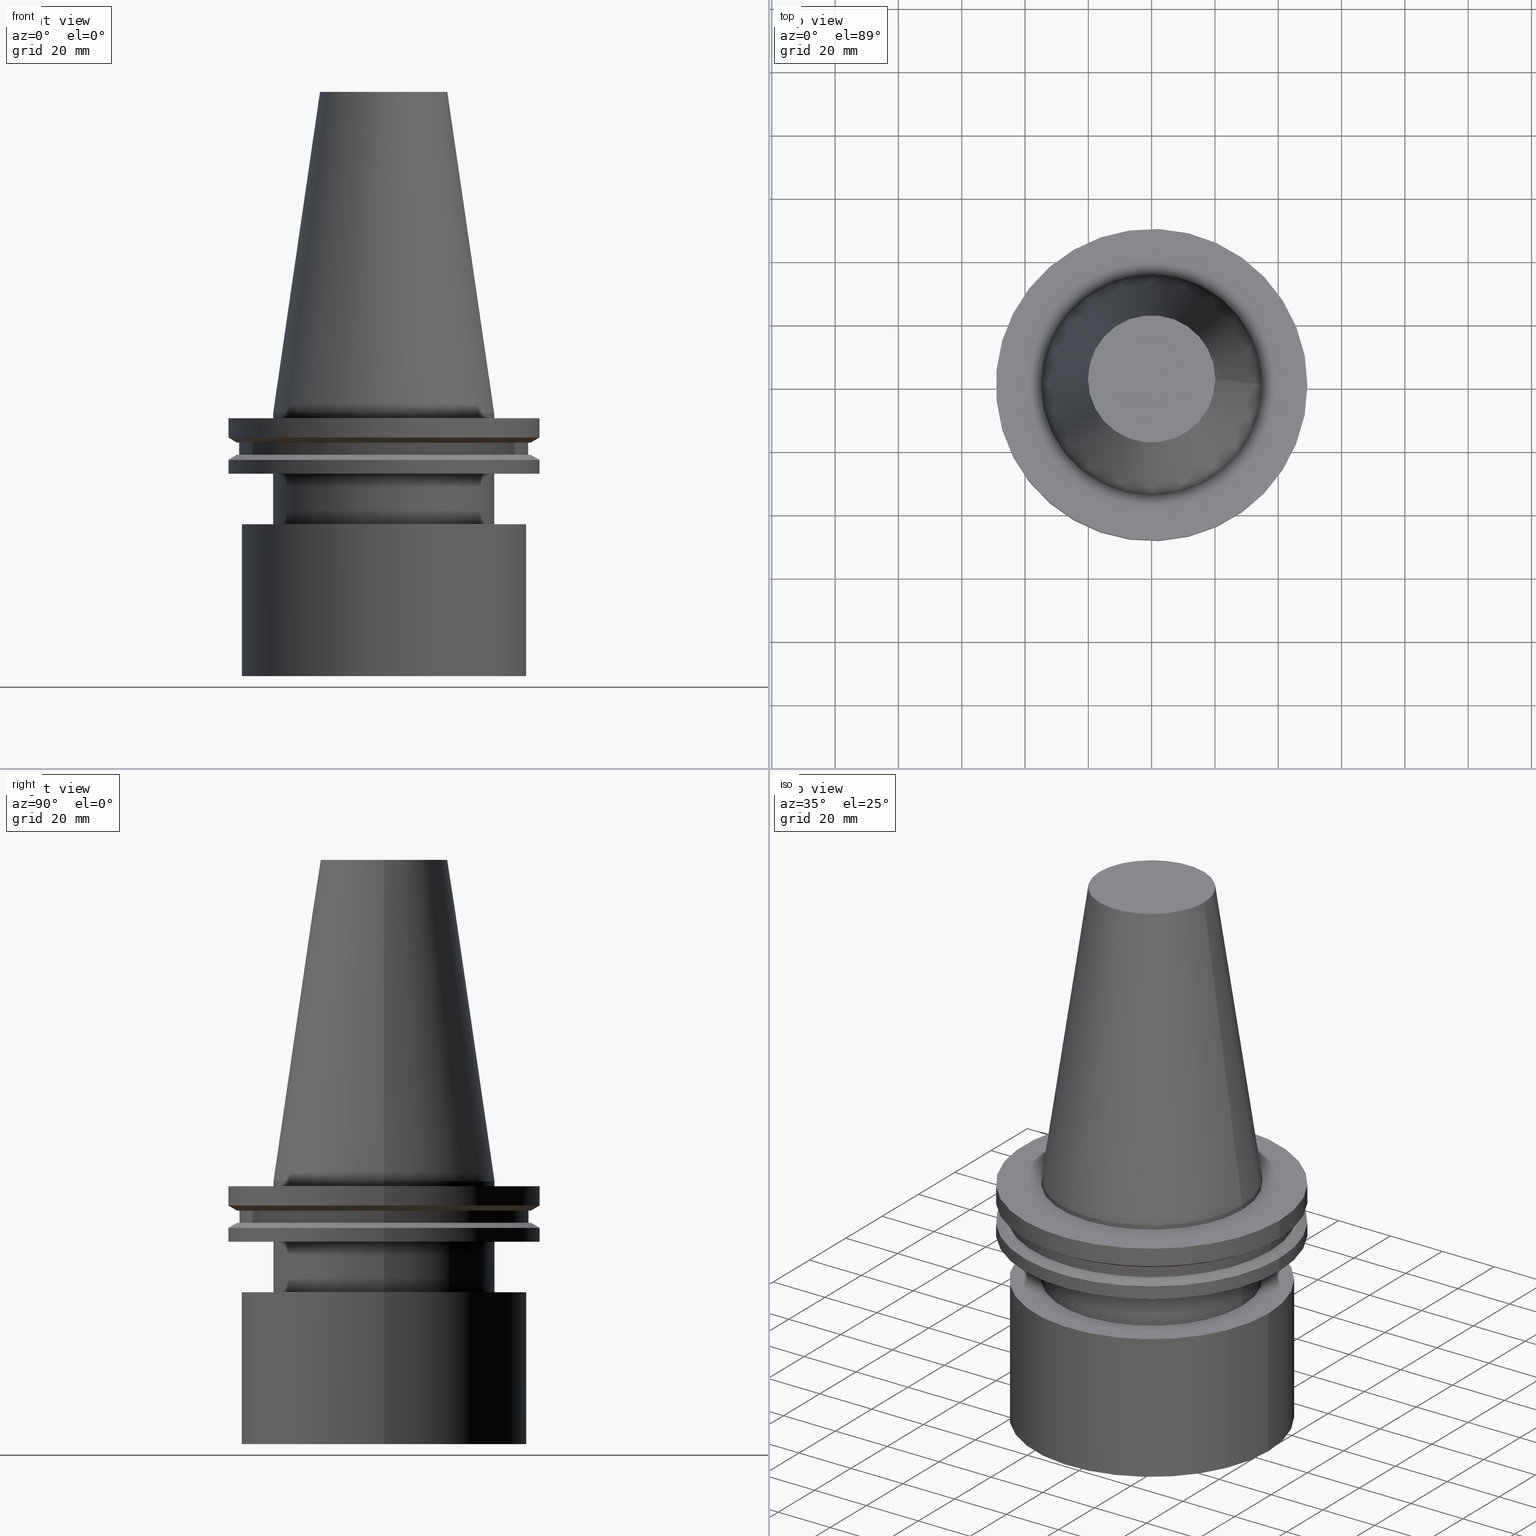
[diagram: canonical four-view strip — front | top / right | iso, engineering-drawing reading convention]
A machine part, canonical four-view strip (front | top / right | iso — engineering-drawing reading convention). The complete STEP part file that produces these views, byte-faithful:
ISO-10303-21;
HEADER;
FILE_DESCRIPTION (( 'STEP AP203' ),
    '1' );
FILE_NAME ('11.326.674.stp',
    '2022-03-09T14:59:57',
    ( '' ),
    ( '' ),
    'SwSTEP 2.0',
    'SolidWorks 2021',
    '' );
FILE_SCHEMA (( 'CONFIG_CONTROL_DESIGN' ));
ENDSEC;

DATA;
#1 = CARTESIAN_POINT ( 'NONE',  ( 34.92499999999999716, 0.000000000000000000, -19.04999999999999716 ) ) ;
#2 = ORIENTED_EDGE ( 'NONE', *, *, #118, .F. ) ;
#3 = VERTEX_POINT ( 'NONE', #72 ) ;
#4 = ADVANCED_FACE ( 'NONE', ( #145, #353 ), #290, .T. ) ;
#5 = ORIENTED_EDGE ( 'NONE', *, *, #107, .T. ) ;
#6 = DIRECTION ( 'NONE',  ( 0.000000000000000000, 0.000000000000000000, 1.000000000000000000 ) ) ;
#7 = ORIENTED_EDGE ( 'NONE', *, *, #69, .T. ) ;
#8 = CARTESIAN_POINT ( 'NONE',  ( 34.92499999999999716, 0.000000000000000000, -35.00000000000000000 ) ) ;
#9 = ORIENTED_EDGE ( 'NONE', *, *, #23, .T. ) ;
#10 = PERSON_AND_ORGANIZATION_ROLE ( 'creator' ) ;
#11 = CIRCLE ( 'NONE', #64, 45.00000000000000000 ) ;
#12 = APPROVAL_PERSON_ORGANIZATION ( #199, #171, #166 ) ;
#13 = CARTESIAN_POINT ( 'NONE',  ( 0.000000000000000000, 20.10819343178871321, 101.5999999999999943 ) ) ;
#14 = CARTESIAN_POINT ( 'NONE',  ( 45.64500000000000313, 0.000000000000000000, -13.05499999999999794 ) ) ;
#15 = CC_DESIGN_PERSON_AND_ORGANIZATION_ASSIGNMENT ( #75, #10, ( #367 ) ) ;
#16 = DIRECTION ( 'NONE',  ( 1.000000000000000000, 0.000000000000000000, 0.000000000000000000 ) ) ;
#17 = APPROVAL_ROLE ( '' ) ;
#18 = DIRECTION ( 'NONE',  ( -1.000000000000000000, 0.000000000000000000, -0.000000000000000000 ) ) ;
#19 = DATE_AND_TIME ( #173, #79 ) ;
#20 = AXIS2_PLACEMENT_3D ( 'NONE', #110, #267, #212 ) ;
#21 = PRODUCT_DEFINITION_FORMATION_WITH_SPECIFIED_SOURCE ( 'ANY', '', #305, .NOT_KNOWN. ) ;
#22 = PLANE ( 'NONE',  #168 ) ;
#23 = EDGE_CURVE ( 'NONE', #279, #279, #390, .T. ) ;
#24 = CARTESIAN_POINT ( 'NONE',  ( 0.000000000000000000, 0.000000000000000000, -13.05499999999999794 ) ) ;
#25 = PERSON_AND_ORGANIZATION ( #112, #370 ) ;
#26 = FACE_BOUND ( 'NONE', #181, .T. ) ;
#27 = CALENDAR_DATE ( 2022, 9, 3 ) ;
#28 = EDGE_CURVE ( 'NONE', #225, #225, #177, .T. ) ;
#29 = AXIS2_PLACEMENT_3D ( 'NONE', #13, #270, #18 ) ;
#30 = CC_DESIGN_APPROVAL ( #171, ( #367 ) ) ;
#31 = CARTESIAN_POINT ( 'NONE',  ( 0.000000000000000000, 0.000000000000000000, 101.5999999999999943 ) ) ;
#32 = DIRECTION ( 'NONE',  ( 0.000000000000000000, -0.000000000000000000, 1.000000000000000000 ) ) ;
#33 = CARTESIAN_POINT ( 'NONE',  ( 0.000000000000000000, 0.000000000000000000, -9.204999999999991189 ) ) ;
#34 = AXIS2_PLACEMENT_3D ( 'NONE', #300, #389, #119 ) ;
#35 = EDGE_CURVE ( 'NONE', #252, #252, #54, .T. ) ;
#36 = CARTESIAN_POINT ( 'NONE',  ( 0.000000000000000000, 0.000000000000000000, 101.5999999999999943 ) ) ;
#37 = DIRECTION ( 'NONE',  ( 1.000000000000000000, 0.000000000000000000, 0.000000000000000000 ) ) ;
#38 = EDGE_LOOP ( 'NONE', ( #311 ) ) ;
#39 = EDGE_CURVE ( 'NONE', #227, #227, #78, .T. ) ;
#40 = ORIENTED_EDGE ( 'NONE', *, *, #211, .F. ) ;
#41 = AXIS2_PLACEMENT_3D ( 'NONE', #144, #149, #50 ) ;
#42 = EDGE_LOOP ( 'NONE', ( #99 ) ) ;
#43 = VERTEX_POINT ( 'NONE', #377 ) ;
#44 = APPROVAL_STATUS ( 'not_yet_approved' ) ;
#45 = EDGE_LOOP ( 'NONE', ( #40 ) ) ;
#46 = CALENDAR_DATE ( 2022, 9, 3 ) ;
#47 = AXIS2_PLACEMENT_3D ( 'NONE', #189, #157, #182 ) ;
#48 = ORIENTED_EDGE ( 'NONE', *, *, #93, .T. ) ;
#49 = SECURITY_CLASSIFICATION_LEVEL ( 'unclassified' ) ;
#50 = DIRECTION ( 'NONE',  ( 1.000000000000000000, 0.000000000000000000, 0.000000000000000000 ) ) ;
#51 = CYLINDRICAL_SURFACE ( 'NONE', #327, 49.21499999999999631 ) ;
#52 = ADVANCED_FACE ( 'NONE', ( #350, #321 ), #58, .T. ) ;
#53 = FACE_OUTER_BOUND ( 'NONE', #262, .T. ) ;
#54 = CIRCLE ( 'NONE', #41, 49.21500000000000341 ) ;
#55 = DIRECTION ( 'NONE',  ( -1.000000000000000000, 0.000000000000000000, -0.000000000000000000 ) ) ;
#56 = PERSON_AND_ORGANIZATION_ROLE ( 'creator' ) ;
#57 = CARTESIAN_POINT ( 'NONE',  ( 0.000000000000000000, 0.000000000000000000, -35.00000000000000000 ) ) ;
#58 = CYLINDRICAL_SURFACE ( 'NONE', #130, 34.92499999999999716 ) ;
#59 = CIRCLE ( 'NONE', #147, 34.92499999999999716 ) ;
#60 = CARTESIAN_POINT ( 'NONE',  ( 0.000000000000000000, 0.000000000000000000, 0.000000000000000000 ) ) ;
#61 = DIRECTION ( 'NONE',  ( 1.000000000000000000, 0.000000000000000000, 0.000000000000000000 ) ) ;
#62 = DIRECTION ( 'NONE',  ( -0.000000000000000000, -0.000000000000000000, 1.000000000000000000 ) ) ;
#63 = PRODUCT_DEFINITION_SHAPE ( 'NONE', 'NONE',  #367 ) ;
#64 = AXIS2_PLACEMENT_3D ( 'NONE', #308, #334, #126 ) ;
#65 = CC_DESIGN_APPROVAL ( #197, ( #132 ) ) ;
#66 = PLANE ( 'NONE',  #47 ) ;
#67 = ORIENTED_EDGE ( 'NONE', *, *, #273, .F. ) ;
#68 = APPLICATION_PROTOCOL_DEFINITION ( 'international standard', 'config_control_design', 1994, #210 ) ;
#69 = EDGE_CURVE ( 'NONE', #349, #349, #203, .T. ) ;
#70 = VERTEX_POINT ( 'NONE', #143 ) ;
#71 = AXIS2_PLACEMENT_3D ( 'NONE', #24, #388, #115 ) ;
#72 = CARTESIAN_POINT ( 'NONE',  ( 20.10819343178871321, 0.000000000000000000, 101.5999999999999801 ) ) ;
#73 = EDGE_LOOP ( 'NONE', ( #2 ) ) ;
#74 = EDGE_LOOP ( 'NONE', ( #165 ) ) ;
#75 = PERSON_AND_ORGANIZATION ( #112, #370 ) ;
#76 = FACE_OUTER_BOUND ( 'NONE', #346, .T. ) ;
#77 = COORDINATED_UNIVERSAL_TIME_OFFSET ( 6, 0, .BEHIND. ) ;
#78 = CIRCLE ( 'NONE', #358, 34.92499999999999005 ) ;
#79 = LOCAL_TIME ( 8, 59, 57.00000000000000000, #77 ) ;
#80 = CARTESIAN_POINT ( 'NONE',  ( 0.000000000000000000, 0.000000000000000000, 0.000000000000000000 ) ) ;
#81 = FACE_OUTER_BOUND ( 'NONE', #348, .T. ) ;
#82 = EDGE_LOOP ( 'NONE', ( #330 ) ) ;
#83 = PERSON_AND_ORGANIZATION_ROLE ( 'classification_officer' ) ;
#84 = DIRECTION ( 'NONE',  ( 1.000000000000000000, 0.000000000000000000, 0.000000000000000000 ) ) ;
#85 = PERSON_AND_ORGANIZATION ( #112, #370 ) ;
#86 = ADVANCED_FACE ( 'NONE', ( #293 ), #352, .F. ) ;
#87 = CYLINDRICAL_SURFACE ( 'NONE', #383, 49.21499999999998920 ) ;
#88 = AXIS2_PLACEMENT_3D ( 'NONE', #31, #274, #124 ) ;
#89 = DIRECTION ( 'NONE',  ( 1.000000000000000000, 0.000000000000000000, 0.000000000000000000 ) ) ;
#90 = PLANE ( 'NONE',  #223 ) ;
#91 = ADVANCED_BREP_SHAPE_REPRESENTATION ( '11.326.674', ( #359, #188 ), #170 ) ;
#92 = DIRECTION ( 'NONE',  ( -1.000000000000000000, 0.000000000000000000, 0.000000000000000000 ) ) ;
#93 = EDGE_CURVE ( 'NONE', #314, #314, #277, .T. ) ;
#94 = ORIENTED_EDGE ( 'NONE', *, *, #28, .F. ) ;
#95 = CYLINDRICAL_SURFACE ( 'NONE', #152, 45.64500000000000313 ) ;
#96 = ORIENTED_EDGE ( 'NONE', *, *, #39, .T. ) ;
#97 = EDGE_LOOP ( 'NONE', ( #167 ) ) ;
#98 = VERTEX_POINT ( 'NONE', #160 ) ;
#99 = ORIENTED_EDGE ( 'NONE', *, *, #360, .F. ) ;
#100 = ADVANCED_FACE ( 'NONE', ( #236, #53 ), #22, .F. ) ;
#101 = ORIENTED_EDGE ( 'NONE', *, *, #320, .T. ) ;
#102 = APPROVAL_DATE_TIME ( #237, #171 ) ;
#103 = EDGE_LOOP ( 'NONE', ( #101 ) ) ;
#104 = VERTEX_POINT ( 'NONE', #8 ) ;
#105 = DESIGN_CONTEXT ( 'detailed design', #210, 'design' ) ;
#106 = DIRECTION ( 'NONE',  ( -0.000000000000000000, -0.000000000000000000, 1.000000000000000000 ) ) ;
#107 = EDGE_CURVE ( 'NONE', #98, #98, #301, .T. ) ;
#108 = AXIS2_PLACEMENT_3D ( 'NONE', #239, #209, #386 ) ;
#109 = APPROVAL_PERSON_ORGANIZATION ( #325, #197, #17 ) ;
#110 = CARTESIAN_POINT ( 'NONE',  ( 0.000000000000000000, 0.000000000000000000, -19.04999999999999716 ) ) ;
#111 = PLANE ( 'NONE',  #194 ) ;
#112 = PERSON ( 'UNSPECIFIED', 'UNSPECIFIED', 'UNSPECIFIED', ('UNSPECIFIED'), ('UNSPECIFIED'), ('UNSPECIFIED') ) ;
#113 = CARTESIAN_POINT ( 'NONE',  ( 0.000000000000000000, 0.000000000000000000, 101.5999999999999943 ) ) ;
#114 = FACE_OUTER_BOUND ( 'NONE', #74, .T. ) ;
#115 = DIRECTION ( 'NONE',  ( 1.000000000000000000, 0.000000000000000000, 0.000000000000000000 ) ) ;
#116 = DATE_TIME_ROLE ( 'creation_date' ) ;
#117 = FACE_OUTER_BOUND ( 'NONE', #82, .T. ) ;
#118 = EDGE_CURVE ( 'NONE', #136, #136, #296, .T. ) ;
#119 = DIRECTION ( 'NONE',  ( 1.000000000000000000, 0.000000000000000000, 0.000000000000000000 ) ) ;
#120 = APPROVAL_ROLE ( '' ) ;
#121 = PLANE ( 'NONE',  #108 ) ;
#122 = FACE_OUTER_BOUND ( 'NONE', #224, .T. ) ;
#123 = ADVANCED_FACE ( 'NONE', ( #142, #76 ), #393, .T. ) ;
#124 = DIRECTION ( 'NONE',  ( 1.000000000000000000, 0.000000000000000000, 0.000000000000000000 ) ) ;
#125 = CLOSED_SHELL ( 'NONE', ( #228, #86, #52, #221, #345, #123, #158, #356, #333, #263, #193, #163, #235, #100, #4, #387 ) ) ;
#126 = DIRECTION ( 'NONE',  ( 1.000000000000000000, 0.000000000000000000, 0.000000000000000000 ) ) ;
#127 = DIRECTION ( 'NONE',  ( 0.000000000000000000, -0.000000000000000000, 1.000000000000000000 ) ) ;
#128 = EDGE_LOOP ( 'NONE', ( #190 ) ) ;
#129 = CARTESIAN_POINT ( 'NONE',  ( 46.43919780457007818, 0.000000000000000000, -9.204999999999991189 ) ) ;
#130 = AXIS2_PLACEMENT_3D ( 'NONE', #113, #106, #298 ) ;
#131 = ORIENTED_EDGE ( 'NONE', *, *, #137, .T. ) ;
#132 = SECURITY_CLASSIFICATION ( '', '', #49 ) ;
#133 = CARTESIAN_POINT ( 'NONE',  ( 49.21499999999999631, 0.000000000000000000, -1.499999999999987566 ) ) ;
#134 = MECHANICAL_CONTEXT ( 'NONE', #229, 'mechanical' ) ;
#135 = EDGE_LOOP ( 'NONE', ( #172 ) ) ;
#136 = VERTEX_POINT ( 'NONE', #281 ) ;
#137 = EDGE_CURVE ( 'NONE', #312, #312, #310, .T. ) ;
#138 = EDGE_LOOP ( 'NONE', ( #5 ) ) ;
#139 = AXIS2_PLACEMENT_3D ( 'NONE', #379, #202, #272 ) ;
#140 = COORDINATED_UNIVERSAL_TIME_OFFSET ( 6, 0, .BEHIND. ) ;
#141 = PRODUCT_RELATED_PRODUCT_CATEGORY ( 'detail', '', ( #305 ) ) ;
#142 = FACE_BOUND ( 'NONE', #342, .T. ) ;
#143 = CARTESIAN_POINT ( 'NONE',  ( 45.00000000000000000, 0.000000000000000000, -83.00000000000000000 ) ) ;
#144 = CARTESIAN_POINT ( 'NONE',  ( 0.000000000000000000, 0.000000000000000000, -7.602389855251287187 ) ) ;
#145 = FACE_OUTER_BOUND ( 'NONE', #45, .T. ) ;
#146 = CALENDAR_DATE ( 2022, 9, 3 ) ;
#147 = AXIS2_PLACEMENT_3D ( 'NONE', #185, #62, #394 ) ;
#148 = DIRECTION ( 'NONE',  ( 1.000000000000000000, 0.000000000000000000, 0.000000000000000000 ) ) ;
#149 = DIRECTION ( 'NONE',  ( -0.000000000000000000, -0.000000000000000000, 1.000000000000000000 ) ) ;
#150 = APPROVAL_DATE_TIME ( #213, #378 ) ;
#151 = FACE_OUTER_BOUND ( 'NONE', #138, .T. ) ;
#152 = AXIS2_PLACEMENT_3D ( 'NONE', #247, #278, #89 ) ;
#153 = CARTESIAN_POINT ( 'NONE',  ( 0.000000000000000000, 0.000000000000000000, 101.5999999999999801 ) ) ;
#154 = CARTESIAN_POINT ( 'NONE',  ( 0.000000000000000000, 49.21499999999998920, -19.04999999999999716 ) ) ;
#155 = DIRECTION ( 'NONE',  ( 1.000000000000000000, 0.000000000000000000, 0.000000000000000000 ) ) ;
#156 = DIRECTION ( 'NONE',  ( 1.000000000000000000, 0.000000000000000000, 0.000000000000000000 ) ) ;
#157 = DIRECTION ( 'NONE',  ( 0.000000000000000000, -0.000000000000000000, 1.000000000000000000 ) ) ;
#158 = ADVANCED_FACE ( 'NONE', ( #26, #151 ), #121, .F. ) ;
#159 = EDGE_LOOP ( 'NONE', ( #313 ) ) ;
#160 = CARTESIAN_POINT ( 'NONE',  ( 46.43919780457007818, 0.000000000000000000, -13.05499999999999794 ) ) ;
#161 = AXIS2_PLACEMENT_3D ( 'NONE', #381, #259, #324 ) ;
#162 = ORIENTED_EDGE ( 'NONE', *, *, #273, .T. ) ;
#163 = ADVANCED_FACE ( 'NONE', ( #297, #81 ), #111, .F. ) ;
#164 = DIRECTION ( 'NONE',  ( 1.000000000000000000, 0.000000000000000000, 0.000000000000000000 ) ) ;
#165 = ORIENTED_EDGE ( 'NONE', *, *, #137, .F. ) ;
#166 = APPROVAL_ROLE ( '' ) ;
#167 = ORIENTED_EDGE ( 'NONE', *, *, #360, .T. ) ;
#168 = AXIS2_PLACEMENT_3D ( 'NONE', #242, #205, #55 ) ;
#169 = DATE_AND_TIME ( #46, #266 ) ;
#170 =( GEOMETRIC_REPRESENTATION_CONTEXT ( 3 ) GLOBAL_UNCERTAINTY_ASSIGNED_CONTEXT ( ( #240 ) ) GLOBAL_UNIT_ASSIGNED_CONTEXT ( ( #343, #260, #341 ) ) REPRESENTATION_CONTEXT ( 'NONE', 'WORKASPACE' ) );
#171 = APPROVAL ( #44, 'UNSPECIFIED' ) ;
#172 = ORIENTED_EDGE ( 'NONE', *, *, #35, .T. ) ;
#173 = CALENDAR_DATE ( 2022, 9, 3 ) ;
#174 = DIRECTION ( 'NONE',  ( -0.000000000000000000, -0.000000000000000000, 1.000000000000000000 ) ) ;
#175 = DIRECTION ( 'NONE',  ( -0.000000000000000000, -0.000000000000000000, 1.000000000000000000 ) ) ;
#176 = EDGE_LOOP ( 'NONE', ( #162 ) ) ;
#177 = CIRCLE ( 'NONE', #249, 46.43919780457007818 ) ;
#178 = CARTESIAN_POINT ( 'NONE',  ( 0.000000000000000000, 0.000000000000000000, 0.000000000000000000 ) ) ;
#179 = DATE_TIME_ROLE ( 'classification_date' ) ;
#180 = DIRECTION ( 'NONE',  ( -0.000000000000000000, -0.000000000000000000, 1.000000000000000000 ) ) ;
#181 = EDGE_LOOP ( 'NONE', ( #67 ) ) ;
#182 = DIRECTION ( 'NONE',  ( 1.000000000000000000, 0.000000000000000000, 0.000000000000000000 ) ) ;
#183 = AXIS2_PLACEMENT_3D ( 'NONE', #57, #180, #299 ) ;
#184 = FACE_OUTER_BOUND ( 'NONE', #97, .T. ) ;
#185 = CARTESIAN_POINT ( 'NONE',  ( 0.000000000000000000, 0.000000000000000000, -35.00000000000000000 ) ) ;
#186 = FACE_BOUND ( 'NONE', #128, .T. ) ;
#187 = CONICAL_SURFACE ( 'NONE', #282, 46.43919780457007818, 1.047197551196575205 ) ;
#188 = AXIS2_PLACEMENT_3D ( 'NONE', #380, #6, #164 ) ;
#189 = CARTESIAN_POINT ( 'NONE',  ( 0.000000000000000000, 45.00000000000000000, -83.00000000000000000 ) ) ;
#190 = ORIENTED_EDGE ( 'NONE', *, *, #28, .T. ) ;
#191 = VERTEX_POINT ( 'NONE', #14 ) ;
#192 = CARTESIAN_POINT ( 'NONE',  ( 49.21499999999998920, 0.000000000000000000, -19.04999999999999716 ) ) ;
#193 = ADVANCED_FACE ( 'NONE', ( #114, #323 ), #51, .T. ) ;
#194 = AXIS2_PLACEMENT_3D ( 'NONE', #207, #269, #271 ) ;
#195 = CC_DESIGN_SECURITY_CLASSIFICATION ( #132, ( #21 ) ) ;
#196 = EDGE_LOOP ( 'NONE', ( #198 ) ) ;
#197 = APPROVAL ( #319, 'UNSPECIFIED' ) ;
#198 = ORIENTED_EDGE ( 'NONE', *, *, #292, .F. ) ;
#199 = PERSON_AND_ORGANIZATION ( #112, #370 ) ;
#200 = ORIENTED_EDGE ( 'NONE', *, *, #118, .T. ) ;
#201 = CALENDAR_DATE ( 2022, 9, 3 ) ;
#202 = DIRECTION ( 'NONE',  ( 0.000000000000000000, 0.000000000000000000, -1.000000000000000000 ) ) ;
#203 = CIRCLE ( 'NONE', #351, 49.21499999999998920 ) ;
#204 = PERSON_AND_ORGANIZATION ( #112, #370 ) ;
#205 = DIRECTION ( 'NONE',  ( 0.000000000000000000, 0.000000000000000000, -1.000000000000000000 ) ) ;
#206 = PERSON_AND_ORGANIZATION_ROLE ( 'design_supplier' ) ;
#207 = CARTESIAN_POINT ( 'NONE',  ( 0.000000000000000000, 49.21499999999999631, -1.499999999999992895 ) ) ;
#208 = DIRECTION ( 'NONE',  ( -0.000000000000000000, -0.000000000000000000, 1.000000000000000000 ) ) ;
#209 = DIRECTION ( 'NONE',  ( 0.000000000000000000, 0.000000000000000000, -1.000000000000000000 ) ) ;
#210 = APPLICATION_CONTEXT ( 'configuration controlled 3d designs of mechanical parts and assemblies' ) ;
#211 = EDGE_CURVE ( 'NONE', #43, #43, #245, .T. ) ;
#212 = DIRECTION ( 'NONE',  ( 1.000000000000000000, 0.000000000000000000, 0.000000000000000000 ) ) ;
#213 = DATE_AND_TIME ( #146, #283 ) ;
#214 = AXIS2_PLACEMENT_3D ( 'NONE', #60, #217, #92 ) ;
#215 = DIRECTION ( 'NONE',  ( -0.000000000000000000, -0.000000000000000000, 1.000000000000000000 ) ) ;
#216 = CC_DESIGN_PERSON_AND_ORGANIZATION_ASSIGNMENT ( #294, #83, ( #132 ) ) ;
#217 = DIRECTION ( 'NONE',  ( 0.000000000000000000, 0.000000000000000000, -1.000000000000000000 ) ) ;
#218 = CIRCLE ( 'NONE', #264, 34.92499999999999005 ) ;
#219 = CYLINDRICAL_SURFACE ( 'NONE', #88, 34.92499999999999005 ) ;
#220 = FACE_OUTER_BOUND ( 'NONE', #254, .T. ) ;
#221 = ADVANCED_FACE ( 'NONE', ( #117, #331 ), #251, .F. ) ;
#222 = CARTESIAN_POINT ( 'NONE',  ( 0.000000000000000000, 46.43919780457007818, -9.204999999999998295 ) ) ;
#223 = AXIS2_PLACEMENT_3D ( 'NONE', #222, #32, #248 ) ;
#224 = EDGE_LOOP ( 'NONE', ( #48 ) ) ;
#225 = VERTEX_POINT ( 'NONE', #129 ) ;
#226 = EDGE_LOOP ( 'NONE', ( #9 ) ) ;
#227 = VERTEX_POINT ( 'NONE', #371 ) ;
#228 = ADVANCED_FACE ( 'NONE', ( #366, #369 ), #374, .T. ) ;
#229 = APPLICATION_CONTEXT ( 'configuration controlled 3d designs of mechanical parts and assemblies' ) ;
#230 = EDGE_LOOP ( 'NONE', ( #373 ) ) ;
#231 = AXIS2_PLACEMENT_3D ( 'NONE', #154, #127, #332 ) ;
#232 = CC_DESIGN_APPROVAL ( #378, ( #21 ) ) ;
#233 = PERSON_AND_ORGANIZATION ( #112, #370 ) ;
#234 = VERTEX_POINT ( 'NONE', #316 ) ;
#235 = ADVANCED_FACE ( 'NONE', ( #220, #184 ), #219, .T. ) ;
#236 = FACE_BOUND ( 'NONE', #376, .T. ) ;
#237 = DATE_AND_TIME ( #201, #253 ) ;
#238 = ORIENTED_EDGE ( 'NONE', *, *, #320, .F. ) ;
#239 = CARTESIAN_POINT ( 'NONE',  ( 0.000000000000000000, 45.64500000000000313, -13.05499999999999794 ) ) ;
#240 = UNCERTAINTY_MEASURE_WITH_UNIT (LENGTH_MEASURE( 1.000000000000000082E-05 ), #343, 'distance_accuracy_value', 'NONE');
#241 = DIRECTION ( 'NONE',  ( -0.000000000000000000, -0.000000000000000000, 1.000000000000000000 ) ) ;
#242 = CARTESIAN_POINT ( 'NONE',  ( 0.000000000000000000, 0.000000000000000000, -35.00000000000000000 ) ) ;
#243 = CARTESIAN_POINT ( 'NONE',  ( 0.000000000000000000, 0.000000000000000000, -9.204999999999991189 ) ) ;
#244 = COORDINATED_UNIVERSAL_TIME_OFFSET ( 6, 0, .BEHIND. ) ;
#245 = CIRCLE ( 'NONE', #183, 45.00000000000000000 ) ;
#246 = EDGE_CURVE ( 'NONE', #104, #104, #59, .T. ) ;
#247 = CARTESIAN_POINT ( 'NONE',  ( 0.000000000000000000, 0.000000000000000000, 101.5999999999999943 ) ) ;
#248 = DIRECTION ( 'NONE',  ( 1.000000000000000000, 0.000000000000000000, 0.000000000000000000 ) ) ;
#249 = AXIS2_PLACEMENT_3D ( 'NONE', #295, #241, #16 ) ;
#250 = CARTESIAN_POINT ( 'NONE',  ( 0.000000000000000000, 0.000000000000000000, -1.499999999999987566 ) ) ;
#251 = PLANE ( 'NONE',  #231 ) ;
#252 = VERTEX_POINT ( 'NONE', #302 ) ;
#253 = LOCAL_TIME ( 8, 59, 57.00000000000000000, #287 ) ;
#254 = EDGE_LOOP ( 'NONE', ( #256 ) ) ;
#255 = EDGE_LOOP ( 'NONE', ( #238 ) ) ;
#256 = ORIENTED_EDGE ( 'NONE', *, *, #39, .F. ) ;
#257 = CARTESIAN_POINT ( 'NONE',  ( 49.21499999999998920, 0.000000000000000000, -14.65761014474876944 ) ) ;
#258 = CC_DESIGN_PERSON_AND_ORGANIZATION_ASSIGNMENT ( #233, #347, ( #305 ) ) ;
#259 = DIRECTION ( 'NONE',  ( -0.000000000000000000, -0.000000000000000000, 1.000000000000000000 ) ) ;
#260 =( NAMED_UNIT ( * ) PLANE_ANGLE_UNIT ( ) SI_UNIT ( $, .RADIAN. ) );
#261 = CARTESIAN_POINT ( 'NONE',  ( 0.000000000000000000, 0.000000000000000000, -14.65761014474876944 ) ) ;
#262 = EDGE_LOOP ( 'NONE', ( #315 ) ) ;
#263 = ADVANCED_FACE ( 'NONE', ( #306, #186 ), #187, .T. ) ;
#264 = AXIS2_PLACEMENT_3D ( 'NONE', #250, #395, #37 ) ;
#265 = COORDINATED_UNIVERSAL_TIME_OFFSET ( 6, 0, .BEHIND. ) ;
#266 = LOCAL_TIME ( 8, 59, 57.00000000000000000, #140 ) ;
#267 = DIRECTION ( 'NONE',  ( -0.000000000000000000, -0.000000000000000000, 1.000000000000000000 ) ) ;
#268 = CC_DESIGN_DATE_AND_TIME_ASSIGNMENT ( #19, #179, ( #132 ) ) ;
#269 = DIRECTION ( 'NONE',  ( 0.000000000000000000, 0.000000000000000000, -1.000000000000000000 ) ) ;
#270 = DIRECTION ( 'NONE',  ( 0.000000000000000000, 0.000000000000000000, -1.000000000000000000 ) ) ;
#271 = DIRECTION ( 'NONE',  ( -1.000000000000000000, 0.000000000000000000, -0.000000000000000000 ) ) ;
#272 = DIRECTION ( 'NONE',  ( -1.000000000000000000, 0.000000000000000000, 0.000000000000000000 ) ) ;
#273 = EDGE_CURVE ( 'NONE', #191, #191, #288, .T. ) ;
#274 = DIRECTION ( 'NONE',  ( -0.000000000000000000, -0.000000000000000000, 1.000000000000000000 ) ) ;
#275 = FACE_OUTER_BOUND ( 'NONE', #73, .T. ) ;
#276 = DIRECTION ( 'NONE',  ( -0.000000000000000000, -0.000000000000000000, 1.000000000000000000 ) ) ;
#277 = CIRCLE ( 'NONE', #161, 49.21499999999998920 ) ;
#278 = DIRECTION ( 'NONE',  ( -0.000000000000000000, -0.000000000000000000, 1.000000000000000000 ) ) ;
#279 = VERTEX_POINT ( 'NONE', #1 ) ;
#280 = CC_DESIGN_PERSON_AND_ORGANIZATION_ASSIGNMENT ( #204, #206, ( #21 ) ) ;
#281 = CARTESIAN_POINT ( 'NONE',  ( 45.64500000000000313, 0.000000000000000000, -9.204999999999991189 ) ) ;
#282 = AXIS2_PLACEMENT_3D ( 'NONE', #33, #304, #365 ) ;
#283 = LOCAL_TIME ( 8, 59, 57.00000000000000000, #244 ) ;
#284 = EDGE_LOOP ( 'NONE', ( #96 ) ) ;
#285 = ORIENTED_EDGE ( 'NONE', *, *, #107, .F. ) ;
#286 = APPLICATION_PROTOCOL_DEFINITION ( 'international standard', 'config_control_design', 1994, #229 ) ;
#287 = COORDINATED_UNIVERSAL_TIME_OFFSET ( 6, 0, .BEHIND. ) ;
#288 = CIRCLE ( 'NONE', #317, 45.64500000000000313 ) ;
#289 = ORIENTED_EDGE ( 'NONE', *, *, #292, .T. ) ;
#290 = CYLINDRICAL_SURFACE ( 'NONE', #344, 45.00000000000000000 ) ;
#291 = SHAPE_DEFINITION_REPRESENTATION ( #63, #91 ) ;
#292 = EDGE_CURVE ( 'NONE', #70, #70, #11, .T. ) ;
#293 = FACE_OUTER_BOUND ( 'NONE', #103, .T. ) ;
#294 = PERSON_AND_ORGANIZATION ( #112, #370 ) ;
#295 = CARTESIAN_POINT ( 'NONE',  ( 0.000000000000000000, 0.000000000000000000, -9.204999999999991189 ) ) ;
#296 = CIRCLE ( 'NONE', #307, 45.64500000000000313 ) ;
#297 = FACE_BOUND ( 'NONE', #42, .T. ) ;
#298 = DIRECTION ( 'NONE',  ( 1.000000000000000000, 0.000000000000000000, 0.000000000000000000 ) ) ;
#299 = DIRECTION ( 'NONE',  ( 1.000000000000000000, 0.000000000000000000, 0.000000000000000000 ) ) ;
#300 = CARTESIAN_POINT ( 'NONE',  ( 0.000000000000000000, 0.000000000000000000, -1.499999999999987566 ) ) ;
#301 = CIRCLE ( 'NONE', #71, 46.43919780457007818 ) ;
#302 = CARTESIAN_POINT ( 'NONE',  ( 49.21500000000000341, 0.000000000000000000, -7.602389855251287187 ) ) ;
#303 = CARTESIAN_POINT ( 'NONE',  ( 0.000000000000000000, 0.000000000000000000, -13.05499999999999794 ) ) ;
#304 = DIRECTION ( 'NONE',  ( -0.000000000000000000, -0.000000000000000000, 1.000000000000000000 ) ) ;
#305 = PRODUCT ( '11.326.674', '11.326.674', '', ( #134 ) ) ;
#306 = FACE_OUTER_BOUND ( 'NONE', #38, .T. ) ;
#307 = AXIS2_PLACEMENT_3D ( 'NONE', #243, #357, #84 ) ;
#308 = CARTESIAN_POINT ( 'NONE',  ( 0.000000000000000000, 0.000000000000000000, -83.00000000000000000 ) ) ;
#309 = CC_DESIGN_PERSON_AND_ORGANIZATION_ASSIGNMENT ( #25, #56, ( #21 ) ) ;
#310 = CIRCLE ( 'NONE', #34, 49.21499999999999631 ) ;
#311 = ORIENTED_EDGE ( 'NONE', *, *, #35, .F. ) ;
#312 = VERTEX_POINT ( 'NONE', #133 ) ;
#313 = ORIENTED_EDGE ( 'NONE', *, *, #69, .F. ) ;
#314 = VERTEX_POINT ( 'NONE', #192 ) ;
#315 = ORIENTED_EDGE ( 'NONE', *, *, #211, .T. ) ;
#316 = CARTESIAN_POINT ( 'NONE',  ( 34.92499999999999005, 0.000000000000000000, -1.499999999999987566 ) ) ;
#317 = AXIS2_PLACEMENT_3D ( 'NONE', #303, #335, #155 ) ;
#318 = EDGE_LOOP ( 'NONE', ( #200 ) ) ;
#319 = APPROVAL_STATUS ( 'not_yet_approved' ) ;
#320 = EDGE_CURVE ( 'NONE', #3, #3, #362, .T. ) ;
#321 = FACE_OUTER_BOUND ( 'NONE', #230, .T. ) ;
#322 = DATE_AND_TIME ( #27, #363 ) ;
#323 = FACE_OUTER_BOUND ( 'NONE', #135, .T. ) ;
#324 = DIRECTION ( 'NONE',  ( 1.000000000000000000, 0.000000000000000000, 0.000000000000000000 ) ) ;
#325 = PERSON_AND_ORGANIZATION ( #112, #370 ) ;
#326 = DIRECTION ( 'NONE',  ( 1.000000000000000000, 0.000000000000000000, 0.000000000000000000 ) ) ;
#327 = AXIS2_PLACEMENT_3D ( 'NONE', #355, #175, #329 ) ;
#328 = APPROVAL_STATUS ( 'not_yet_approved' ) ;
#329 = DIRECTION ( 'NONE',  ( 1.000000000000000000, 0.000000000000000000, 0.000000000000000000 ) ) ;
#330 = ORIENTED_EDGE ( 'NONE', *, *, #93, .F. ) ;
#331 = FACE_BOUND ( 'NONE', #226, .T. ) ;
#332 = DIRECTION ( 'NONE',  ( 1.000000000000000000, 0.000000000000000000, 0.000000000000000000 ) ) ;
#333 = ADVANCED_FACE ( 'NONE', ( #392, #391 ), #90, .F. ) ;
#334 = DIRECTION ( 'NONE',  ( -0.000000000000000000, -0.000000000000000000, 1.000000000000000000 ) ) ;
#335 = DIRECTION ( 'NONE',  ( -0.000000000000000000, -0.000000000000000000, 1.000000000000000000 ) ) ;
#336 = FACE_OUTER_BOUND ( 'NONE', #196, .T. ) ;
#337 = AXIS2_PLACEMENT_3D ( 'NONE', #153, #276, #61 ) ;
#338 = EDGE_LOOP ( 'NONE', ( #289 ) ) ;
#339 = CC_DESIGN_DATE_AND_TIME_ASSIGNMENT ( #169, #116, ( #367 ) ) ;
#340 = DIRECTION ( 'NONE',  ( -0.000000000000000000, -0.000000000000000000, 1.000000000000000000 ) ) ;
#341 =( NAMED_UNIT ( * ) SI_UNIT ( $, .STERADIAN. ) SOLID_ANGLE_UNIT ( ) );
#342 = EDGE_LOOP ( 'NONE', ( #285 ) ) ;
#343 =( LENGTH_UNIT ( ) NAMED_UNIT ( * ) SI_UNIT ( .MILLI., .METRE. ) );
#344 = AXIS2_PLACEMENT_3D ( 'NONE', #178, #215, #148 ) ;
#345 = ADVANCED_FACE ( 'NONE', ( #361, #122 ), #87, .T. ) ;
#346 = EDGE_LOOP ( 'NONE', ( #7 ) ) ;
#347 = PERSON_AND_ORGANIZATION_ROLE ( 'design_owner' ) ;
#348 = EDGE_LOOP ( 'NONE', ( #131 ) ) ;
#349 = VERTEX_POINT ( 'NONE', #257 ) ;
#350 = FACE_OUTER_BOUND ( 'NONE', #368, .T. ) ;
#351 = AXIS2_PLACEMENT_3D ( 'NONE', #261, #174, #326 ) ;
#352 = PLANE ( 'NONE',  #29 ) ;
#353 = FACE_OUTER_BOUND ( 'NONE', #338, .T. ) ;
#354 = ORIENTED_EDGE ( 'NONE', *, *, #23, .F. ) ;
#355 = CARTESIAN_POINT ( 'NONE',  ( 0.000000000000000000, 0.000000000000000000, 101.5999999999999943 ) ) ;
#356 = ADVANCED_FACE ( 'NONE', ( #275, #364 ), #95, .T. ) ;
#357 = DIRECTION ( 'NONE',  ( -0.000000000000000000, -0.000000000000000000, 1.000000000000000000 ) ) ;
#358 = AXIS2_PLACEMENT_3D ( 'NONE', #80, #208, #385 ) ;
#359 = MANIFOLD_SOLID_BREP ( 'CKB', #125 ) ;
#360 = EDGE_CURVE ( 'NONE', #234, #234, #218, .T. ) ;
#361 = FACE_OUTER_BOUND ( 'NONE', #159, .T. ) ;
#362 = CIRCLE ( 'NONE', #337, 20.10819343178871321 ) ;
#363 = LOCAL_TIME ( 8, 59, 57.00000000000000000, #265 ) ;
#364 = FACE_OUTER_BOUND ( 'NONE', #176, .T. ) ;
#365 = DIRECTION ( 'NONE',  ( 1.000000000000000000, 0.000000000000000000, 0.000000000000000000 ) ) ;
#366 = FACE_BOUND ( 'NONE', #255, .T. ) ;
#367 = PRODUCT_DEFINITION ( 'UNKNOWN', '', #21, #105 ) ;
#368 = EDGE_LOOP ( 'NONE', ( #354 ) ) ;
#369 = FACE_OUTER_BOUND ( 'NONE', #284, .T. ) ;
#370 = ORGANIZATION ( 'UNSPECIFIED', 'UNSPECIFIED', '' ) ;
#371 = CARTESIAN_POINT ( 'NONE',  ( 34.92499999999999005, 0.000000000000000000, 0.000000000000000000 ) ) ;
#372 = ORIENTED_EDGE ( 'NONE', *, *, #246, .F. ) ;
#373 = ORIENTED_EDGE ( 'NONE', *, *, #246, .T. ) ;
#374 = CONICAL_SURFACE ( 'NONE', #214, 34.92499999999999005, 0.1448138465474119452 ) ;
#375 = APPROVAL_PERSON_ORGANIZATION ( #85, #378, #120 ) ;
#376 = EDGE_LOOP ( 'NONE', ( #372 ) ) ;
#377 = CARTESIAN_POINT ( 'NONE',  ( 45.00000000000000000, 0.000000000000000000, -35.00000000000000000 ) ) ;
#378 = APPROVAL ( #328, 'UNSPECIFIED' ) ;
#379 = CARTESIAN_POINT ( 'NONE',  ( 0.000000000000000000, 0.000000000000000000, -14.65761014474876944 ) ) ;
#380 = CARTESIAN_POINT ( 'NONE',  ( 0.000000000000000000, 0.000000000000000000, 0.000000000000000000 ) ) ;
#381 = CARTESIAN_POINT ( 'NONE',  ( 0.000000000000000000, 0.000000000000000000, -19.04999999999999716 ) ) ;
#382 = APPROVAL_DATE_TIME ( #322, #197 ) ;
#383 = AXIS2_PLACEMENT_3D ( 'NONE', #36, #340, #156 ) ;
#384 = EDGE_LOOP ( 'NONE', ( #94 ) ) ;
#385 = DIRECTION ( 'NONE',  ( 1.000000000000000000, 0.000000000000000000, 0.000000000000000000 ) ) ;
#386 = DIRECTION ( 'NONE',  ( -1.000000000000000000, 0.000000000000000000, -0.000000000000000000 ) ) ;
#387 = ADVANCED_FACE ( 'NONE', ( #336 ), #66, .F. ) ;
#388 = DIRECTION ( 'NONE',  ( -0.000000000000000000, -0.000000000000000000, 1.000000000000000000 ) ) ;
#389 = DIRECTION ( 'NONE',  ( -0.000000000000000000, -0.000000000000000000, 1.000000000000000000 ) ) ;
#390 = CIRCLE ( 'NONE', #20, 34.92499999999999716 ) ;
#391 = FACE_BOUND ( 'NONE', #318, .T. ) ;
#392 = FACE_OUTER_BOUND ( 'NONE', #384, .T. ) ;
#393 = CONICAL_SURFACE ( 'NONE', #139, 49.21499999999998920, 1.047197551196554333 ) ;
#394 = DIRECTION ( 'NONE',  ( 1.000000000000000000, 0.000000000000000000, 0.000000000000000000 ) ) ;
#395 = DIRECTION ( 'NONE',  ( -0.000000000000000000, -0.000000000000000000, 1.000000000000000000 ) ) ;
ENDSEC;
END-ISO-10303-21;
